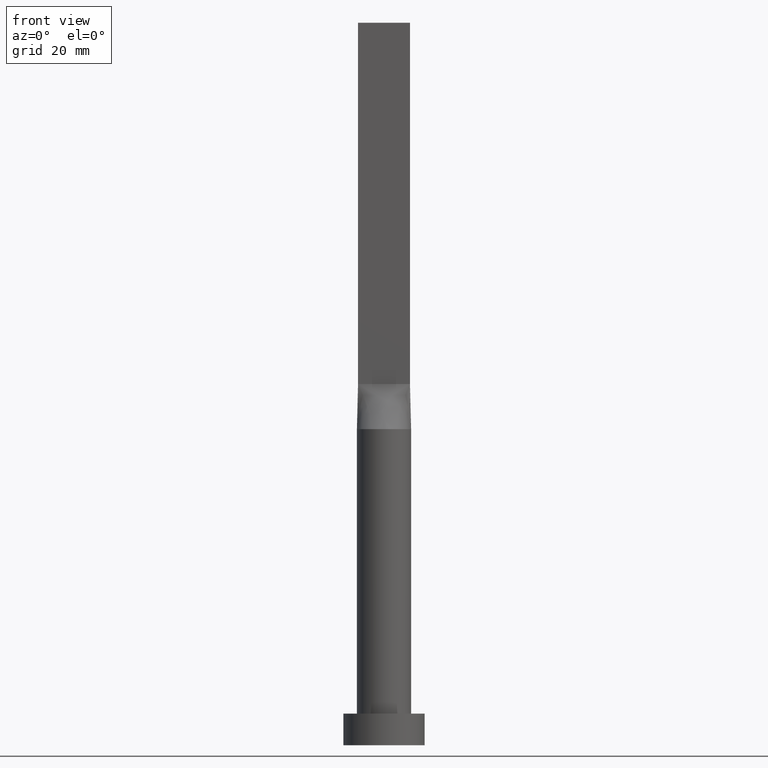
[diagram: clean part render]
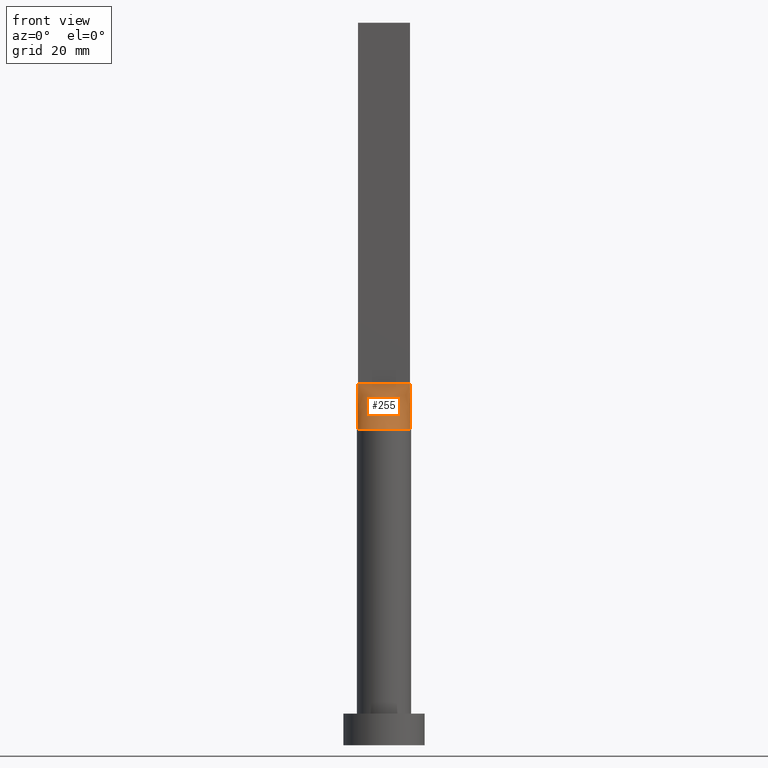
[diagram: same view with one face highlighted and labeled with its STEP entity id]
A machine part, front view. The second image highlights one B-rep face of the part: STEP entity #255.
In plain terms, the highlighted face is a freeform B-spline surface patch.
Its self-contained STEP definition (entity closure, byte-faithful):
#2 = EDGE_CURVE ( 'NONE', #601, #67, #319, .T. ) ;
#3 = CARTESIAN_POINT ( 'NONE',  ( 4.791666666666666963, -0.9999999999999995559, 80.00000000000001421 ) ) ;
#26 = CARTESIAN_POINT ( 'NONE',  ( 5.750000000000000000, -0.9999999999999997780, 80.00000000000000000 ) ) ;
#33 = CARTESIAN_POINT ( 'NONE',  ( 3.354166666666666075, -0.9999999999999993339, 80.00000000000001421 ) ) ;
#41 = CARTESIAN_POINT ( 'NONE',  ( 2.635416666666665630, -0.9999999999999991118, 80.00000000000000000 ) ) ;
#43 = CARTESIAN_POINT ( 'NONE',  ( 1.197916666666666741, -0.9999999999999991118, 80.00000000000000000 ) ) ;
#67 = VERTEX_POINT ( 'NONE', #26 ) ;
#80 = CARTESIAN_POINT ( 'NONE',  ( 0.4791666666666670182, -0.9999999999999991118, 79.99999999999998579 ) ) ;
#83 = CARTESIAN_POINT ( 'NONE',  ( -1.677083333333331705, -0.9999999999999991118, 79.99999999999998579 ) ) ;
#87 = CARTESIAN_POINT ( 'NONE',  ( -5.911270528918048051, -1.028047048507485295, 70.00000000000000000 ) ) ;
#90 = CARTESIAN_POINT ( 'NONE',  ( 1.677083333333333037, -0.9999999999999991118, 80.00000000000000000 ) ) ;
#98 = CARTESIAN_POINT ( 'NONE',  ( 0.000000000000000000, 0.000000000000000000, 70.00000000000000000 ) ) ;
#109 = ORIENTED_EDGE ( 'NONE', *, *, #592, .T. ) ;
#130 = ORIENTED_EDGE ( 'NONE', *, *, #2, .F. ) ;
#132 = CARTESIAN_POINT ( 'NONE',  ( 5.830635264459022693, -1.014023524253744313, 75.00000000000001421 ) ) ;
#133 = CARTESIAN_POINT ( 'NONE',  ( -3.833333333333331705, -0.9999999999999991118, 79.99999999999998579 ) ) ;
#139 = CARTESIAN_POINT ( 'NONE',  ( -2.395833333333331261, -0.9999999999999991118, 79.99999999999998579 ) ) ;
#144 = B_SPLINE_SURFACE_WITH_KNOTS ( 'NONE', 3, 1, ( 
 ( #87, #526 ),
 ( #277, #328 ),
 ( #233, #431 ),
 ( #427, #133 ),
 ( #517, #184 ),
 ( #423, #221 ),
 ( #614, #139 ),
 ( #562, #179 ),
 ( #175, #83 ),
 ( #365, #374 ),
 ( #326, #462 ),
 ( #181, #524 ),
 ( #573, #607 ),
 ( #467, #612 ),
 ( #368, #80 ),
 ( #621, #566 ),
 ( #186, #43 ),
 ( #473, #90 ),
 ( #274, #231 ),
 ( #425, #575 ),
 ( #378, #41 ),
 ( #267, #33 ),
 ( #228, #371 ),
 ( #568, #3 ),
 ( #434, #334 ),
 ( #146, #301 ) ),
 .UNSPECIFIED., .F., .F., .F.,
 ( 4, 2, 2, 2, 2, 2, 2, 2, 2, 2, 2, 2, 4 ),
 ( 2, 2 ),
 ( 0.000000000000000000, 0.1250000000000001388, 0.2500000000000002776, 0.3125000000000002220, 0.3750000000000001665, 0.4375000000000001665, 0.5000000000000001110, 0.5625000000000001110, 0.6250000000000000000, 0.6875000000000000000, 0.7499999999999998890, 0.8750000000000000000, 1.000000000000000000 ),
 ( 0.000000000000000000, 1.000000000000000000 ),
 .UNSPECIFIED. ) ;
#146 = CARTESIAN_POINT ( 'NONE',  ( 5.911270528918047162, -1.028047048507488848, 70.00000000000000000 ) ) ;
#169 = CARTESIAN_POINT ( 'NONE',  ( 5.911281968884419591, -1.028049053400068802, 70.00000000000000000 ) ) ;
#170 = CARTESIAN_POINT ( 'NONE',  ( -5.750000000000000000, -0.9999999999999988898, 80.00000000000000000 ) ) ;
#175 = CARTESIAN_POINT ( 'NONE',  ( -2.785082292717044439, -5.329682650394844678, 70.00000000000001421 ) ) ;
#179 = CARTESIAN_POINT ( 'NONE',  ( -1.916666666666664964, -0.9999999999999991118, 79.99999999999998579 ) ) ;
#181 = CARTESIAN_POINT ( 'NONE',  ( -0.8409966403356993192, -5.955311887060000586, 70.00000000000000000 ) ) ;
#184 = CARTESIAN_POINT ( 'NONE',  ( -3.354166666666664742, -0.9999999999999991118, 79.99999999999998579 ) ) ;
#186 = CARTESIAN_POINT ( 'NONE',  ( 2.047812955694711778, -5.654083712646525761, 70.00000000000000000 ) ) ;
#220 = CARTESIAN_POINT ( 'NONE',  ( -5.830635264459023581, -1.014023524253742092, 75.00000000000001421 ) ) ;
#221 = CARTESIAN_POINT ( 'NONE',  ( -2.635416666666664298, -0.9999999999999991118, 79.99999999999998579 ) ) ;
#228 = CARTESIAN_POINT ( 'NONE',  ( 5.155904004142090713, -3.127085030567962498, 70.00000000000000000 ) ) ;
#231 = CARTESIAN_POINT ( 'NONE',  ( 1.916666666666666297, -0.9999999999999991118, 80.00000000000000000 ) ) ;
#233 = CARTESIAN_POINT ( 'NONE',  ( -5.674157483178165151, -2.041064365575944173, 70.00000000000000000 ) ) ;
#255 = ADVANCED_FACE ( 'NONE', ( #270 ), #144, .T. ) ;
#266 = LINE ( 'NONE', #220, #391 ) ;
#267 = CARTESIAN_POINT ( 'NONE',  ( 4.788055724916943312, -3.685825800347684922, 69.99999999999998579 ) ) ;
#270 = FACE_OUTER_BOUND ( 'NONE', #544, .T. ) ;
#274 = CARTESIAN_POINT ( 'NONE',  ( 3.129188161608682073, -5.133661927581553819, 70.00000000000000000 ) ) ;
#277 = CARTESIAN_POINT ( 'NONE',  ( -5.826866859193279957, -1.513368149424916931, 70.00000000000001421 ) ) ;
#301 = CARTESIAN_POINT ( 'NONE',  ( 5.750000000000000000, -0.9999999999999997780, 80.00000000000000000 ) ) ;
#319 = LINE ( 'NONE', #170, #432 ) ;
#324 = DIRECTION ( 'NONE',  ( -0.01612489271847465655, 0.002804329168430633092, 0.9998660528154422744 ) ) ;
#326 = CARTESIAN_POINT ( 'NONE',  ( -1.654707822076787016, -5.782296865845954592, 70.00000000000000000 ) ) ;
#328 = CARTESIAN_POINT ( 'NONE',  ( -5.270833333333333037, -0.9999999999999988898, 80.00000000000000000 ) ) ;
#330 = EDGE_CURVE ( 'NONE', #347, #397, #333, .T. ) ;
#333 = CIRCLE ( 'NONE', #419, 6.000000000000000888 ) ;
#334 = CARTESIAN_POINT ( 'NONE',  ( 5.270833333333333925, -0.9999999999999995559, 80.00000000000000000 ) ) ;
#345 = DIRECTION ( 'NONE',  ( 1.000000000000000000, -7.542275982507857147E-17, 0.000000000000000000 ) ) ;
#347 = VERTEX_POINT ( 'NONE', #484 ) ;
#362 = DIRECTION ( 'NONE',  ( -0.01612489271847474676, -0.002804329168430372884, -0.9998660528154422744 ) ) ;
#365 = CARTESIAN_POINT ( 'NONE',  ( -2.047812955694717107, -5.654083712646522208, 69.99999999999998579 ) ) ;
#368 = CARTESIAN_POINT ( 'NONE',  ( 0.8409966403356938791, -5.955311887059998810, 70.00000000000001421 ) ) ;
#371 = CARTESIAN_POINT ( 'NONE',  ( 3.833333333333332593, -0.9999999999999995559, 80.00000000000001421 ) ) ;
#374 = CARTESIAN_POINT ( 'NONE',  ( -1.197916666666665186, -0.9999999999999991118, 79.99999999999998579 ) ) ;
#378 = CARTESIAN_POINT ( 'NONE',  ( 4.038230363771777576, -4.452009983475586630, 69.99999999999998579 ) ) ;
#389 = CARTESIAN_POINT ( 'NONE',  ( -5.750000000000000000, -0.9999999999999988898, 80.00000000000000000 ) ) ;
#391 = VECTOR ( 'NONE', #362, 1000.000000000000114 ) ;
#397 = VERTEX_POINT ( 'NONE', #169 ) ;
#419 = AXIS2_PLACEMENT_3D ( 'NONE', #98, #595, #439 ) ;
#423 = CARTESIAN_POINT ( 'NONE',  ( -4.038230363771782017, -4.452009983475583077, 69.99999999999998579 ) ) ;
#425 = CARTESIAN_POINT ( 'NONE',  ( 3.755743307515260643, -4.694751915224761873, 70.00000000000000000 ) ) ;
#427 = CARTESIAN_POINT ( 'NONE',  ( -5.155904004142095154, -3.127085030567956725, 70.00000000000001421 ) ) ;
#431 = CARTESIAN_POINT ( 'NONE',  ( -4.791666666666666075, -0.9999999999999988898, 80.00000000000000000 ) ) ;
#432 = VECTOR ( 'NONE', #345, 1000.000000000000000 ) ;
#434 = CARTESIAN_POINT ( 'NONE',  ( 5.826866859193276404, -1.513368149424921372, 70.00000000000000000 ) ) ;
#439 = DIRECTION ( 'NONE',  ( 1.000000000000000000, 0.000000000000000000, 0.000000000000000000 ) ) ;
#444 = ORIENTED_EDGE ( 'NONE', *, *, #522, .T. ) ;
#462 = CARTESIAN_POINT ( 'NONE',  ( -0.9583333333333320381, -0.9999999999999991118, 79.99999999999998579 ) ) ;
#464 = ORIENTED_EDGE ( 'NONE', *, *, #330, .T. ) ;
#467 = CARTESIAN_POINT ( 'NONE',  ( 0.4205485882577698065, -6.000000000000002665, 69.99999999999998579 ) ) ;
#473 = CARTESIAN_POINT ( 'NONE',  ( 2.785082292717038221, -5.329682650394847343, 70.00000000000000000 ) ) ;
#482 = LINE ( 'NONE', #132, #530 ) ;
#484 = CARTESIAN_POINT ( 'NONE',  ( -5.911272568678778150, -1.028047416901946898, 70.00000000000000000 ) ) ;
#517 = CARTESIAN_POINT ( 'NONE',  ( -4.788055724916950417, -3.685825800347680925, 70.00000000000000000 ) ) ;
#522 = EDGE_CURVE ( 'NONE', #601, #347, #266, .T. ) ;
#524 = CARTESIAN_POINT ( 'NONE',  ( -0.4791666666666659635, -0.9999999999999991118, 79.99999999999998579 ) ) ;
#526 = CARTESIAN_POINT ( 'NONE',  ( -5.750000000000000000, -0.9999999999999988898, 80.00000000000000000 ) ) ;
#530 = VECTOR ( 'NONE', #324, 1000.000000000000114 ) ;
#544 = EDGE_LOOP ( 'NONE', ( #464, #109, #130, #444 ) ) ;
#562 = CARTESIAN_POINT ( 'NONE',  ( -3.129188161608687402, -5.133661927581552042, 70.00000000000001421 ) ) ;
#566 = CARTESIAN_POINT ( 'NONE',  ( 0.9583333333333338144, -0.9999999999999991118, 79.99999999999998579 ) ) ;
#568 = CARTESIAN_POINT ( 'NONE',  ( 5.674157483178163375, -2.041064365575950390, 70.00000000000001421 ) ) ;
#573 = CARTESIAN_POINT ( 'NONE',  ( -0.4205485882577738588, -6.000000000000000888, 70.00000000000001421 ) ) ;
#575 = CARTESIAN_POINT ( 'NONE',  ( 2.395833333333332593, -0.9999999999999991118, 80.00000000000000000 ) ) ;
#592 = EDGE_CURVE ( 'NONE', #397, #67, #482, .T. ) ;
#595 = DIRECTION ( 'NONE',  ( 0.000000000000000000, 0.000000000000000000, 1.000000000000000000 ) ) ;
#601 = VERTEX_POINT ( 'NONE', #389 ) ;
#607 = CARTESIAN_POINT ( 'NONE',  ( -0.2395833333333333148, -0.9999999999999991118, 80.00000000000000000 ) ) ;
#612 = CARTESIAN_POINT ( 'NONE',  ( 0.2395833333333332038, -0.9999999999999991118, 80.00000000000000000 ) ) ;
#614 = CARTESIAN_POINT ( 'NONE',  ( -3.755743307515267304, -4.694751915224760985, 70.00000000000001421 ) ) ;
#621 = CARTESIAN_POINT ( 'NONE',  ( 1.654707822076783019, -5.782296865845954592, 69.99999999999998579 ) ) ;